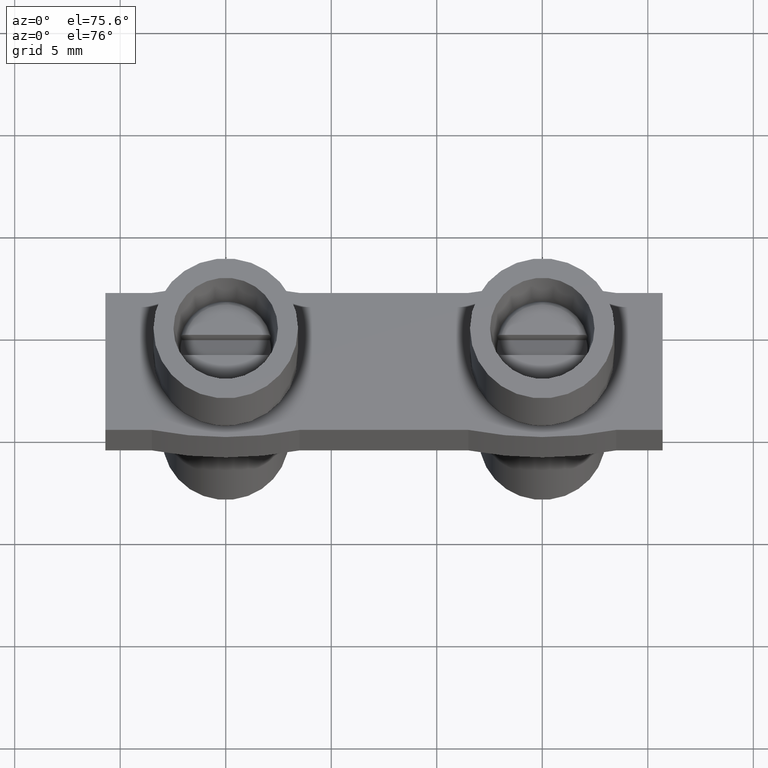
[diagram: clean part render]
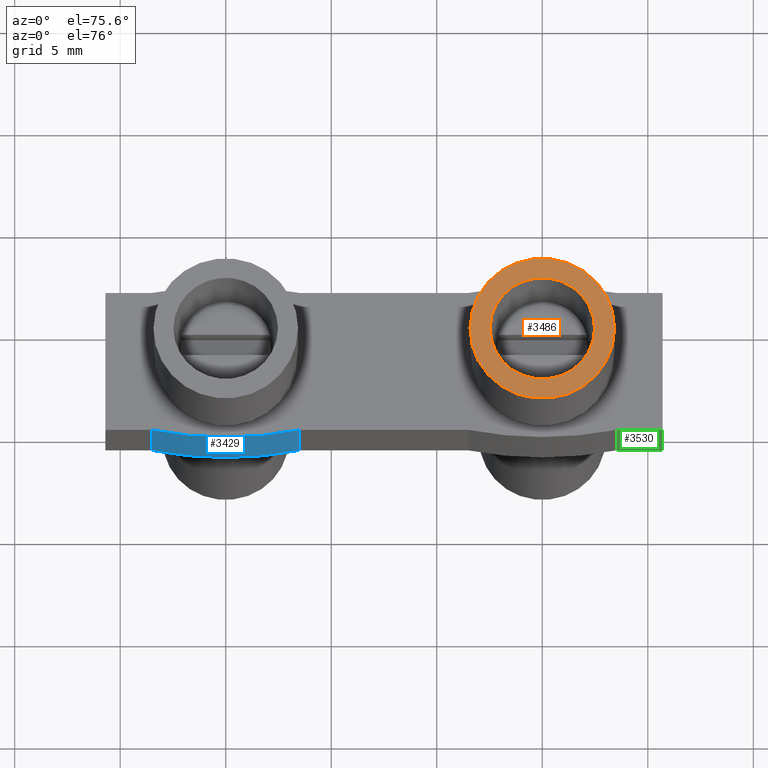
[diagram: same view with three faces highlighted in distinct colors, each labeled with its STEP entity id]
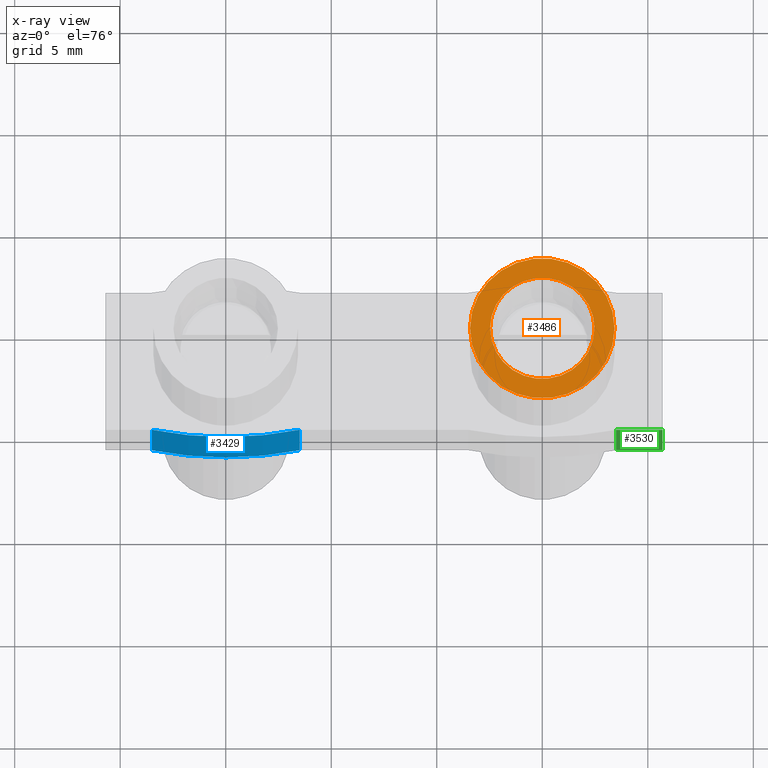
[diagram: x-ray of the same camera — body ghosted, the three highlighted faces saturated]
A machine part, auxiliary view with three faces highlighted in distinct colors.
The next image is the same camera in x-ray (body ghosted, the three faces saturated) — at least one of them is partly hidden behind the body in this view.
Their STEP definitions:

[orange] entity #3486 — the highlighted planar face has unit normal (0, 0, 1).
#308 = FACE_BOUND ( 'NONE', #2023, .T. ) ;
#312 = FACE_OUTER_BOUND ( 'NONE', #2005, .T. ) ;
#316 = PLANE ( 'NONE',  #3151 ) ;
#327 = CARTESIAN_POINT ( 'NONE',  ( 15.00000000000165000, 1.868518637687989600E-015, 5.400000000000000400 ) ) ;
#334 = DIRECTION ( 'NONE',  ( -1.000000000000000000, -2.491358183583711900E-016, 0.0000000000000000000 ) ) ;
#350 = DIRECTION ( 'NONE',  ( 0.0000000000000000000, 0.0000000000000000000, 1.000000000000000000 ) ) ;
#962 = CARTESIAN_POINT ( 'NONE',  ( 15.00000000000165000, 1.868518637687989600E-015, 5.400000000008731100 ) ) ;
#964 = DIRECTION ( 'NONE',  ( -1.000000000000000000, -2.491358183583711900E-016, 0.0000000000000000000 ) ) ;
#967 = DIRECTION ( 'NONE',  ( 0.0000000000000000000, 0.0000000000000000000, 1.000000000000000000 ) ) ;
#1003 = DIRECTION ( 'NONE',  ( 1.000000000000000000, 2.491358183583711900E-016, 0.0000000000000000000 ) ) ;
#1010 = DIRECTION ( 'NONE',  ( -0.0000000000000000000, -0.0000000000000000000, 1.000000000000000000 ) ) ;
#1019 = CARTESIAN_POINT ( 'NONE',  ( 15.00000000000165000, 1.868518637687989600E-015, 5.400000000000000400 ) ) ;
#1237 = CARTESIAN_POINT ( 'NONE',  ( 15.00000000000165000, 1.868518637687989600E-015, 5.400000000000000400 ) ) ;
#1238 = DIRECTION ( 'NONE',  ( 1.000000000000000000, 2.491358183583711900E-016, 0.0000000000000000000 ) ) ;
#1254 = DIRECTION ( 'NONE',  ( -0.0000000000000000000, -0.0000000000000000000, 1.000000000000000000 ) ) ;
#1538 = CARTESIAN_POINT ( 'NONE',  ( 15.00000000000165000, 1.868518637687989600E-015, 5.400000000008731100 ) ) ;
#1543 = DIRECTION ( 'NONE',  ( -1.000000000000000000, -2.491358183583711900E-016, 0.0000000000000000000 ) ) ;
#1549 = DIRECTION ( 'NONE',  ( 0.0000000000000000000, 0.0000000000000000000, 1.000000000000000000 ) ) ;
#1849 = CARTESIAN_POINT ( 'NONE',  ( 17.47500000000565400, 2.182029705336495500E-015, 5.400000000008731100 ) ) ;
#2005 = EDGE_LOOP ( 'NONE', ( #2625, #2657 ) ) ;
#2023 = EDGE_LOOP ( 'NONE', ( #2633, #2672 ) ) ;
#2035 = CARTESIAN_POINT ( 'NONE',  ( 18.42500000000164900, 2.721808815565410300E-015, 5.400000000000000400 ) ) ;
#2087 = CARTESIAN_POINT ( 'NONE',  ( 11.57500000000165300, 5.957869311026002800E-016, 5.400000000000000400 ) ) ;
#2158 = CARTESIAN_POINT ( 'NONE',  ( 12.52499999999764800, 1.251907487250023900E-015, 5.400000000008731100 ) ) ;
#2175 = VERTEX_POINT ( 'NONE', #2087 ) ;
#2183 = VERTEX_POINT ( 'NONE', #2035 ) ;
#2317 = VERTEX_POINT ( 'NONE', #2158 ) ;
#2337 = VERTEX_POINT ( 'NONE', #1849 ) ;
#2625 = ORIENTED_EDGE ( 'NONE', *, *, #3328, .T. ) ;
#2633 = ORIENTED_EDGE ( 'NONE', *, *, #3385, .F. ) ;
#2657 = ORIENTED_EDGE ( 'NONE', *, *, #3238, .T. ) ;
#2672 = ORIENTED_EDGE ( 'NONE', *, *, #3225, .F. ) ;
#2769 = AXIS2_PLACEMENT_3D ( 'NONE', #962, #967, #964 ) ;
#2812 = CIRCLE ( 'NONE', #2769, 2.475000000004001800 ) ;
#2830 = CIRCLE ( 'NONE', #2849, 3.424999999999997600 ) ;
#2849 = AXIS2_PLACEMENT_3D ( 'NONE', #1019, #1010, #1003 ) ;
#2945 = AXIS2_PLACEMENT_3D ( 'NONE', #1237, #1254, #1238 ) ;
#2968 = CIRCLE ( 'NONE', #2945, 3.424999999999997600 ) ;
#3005 = CIRCLE ( 'NONE', #3026, 2.475000000004001800 ) ;
#3026 = AXIS2_PLACEMENT_3D ( 'NONE', #1538, #1549, #1543 ) ;
#3151 = AXIS2_PLACEMENT_3D ( 'NONE', #327, #350, #334 ) ;
#3225 = EDGE_CURVE ( 'NONE', #2337, #2317, #2812, .T. ) ;
#3238 = EDGE_CURVE ( 'NONE', #2175, #2183, #2830, .T. ) ;
#3328 = EDGE_CURVE ( 'NONE', #2183, #2175, #2968, .T. ) ;
#3385 = EDGE_CURVE ( 'NONE', #2317, #2337, #3005, .T. ) ;
#3486 = ADVANCED_FACE ( 'NONE', ( #312, #308 ), #316, .T. ) ;

[blue] entity #3429 — the highlighted cylindrical surface (partial cylindrical patch) has radius 17.675 mm, axis along (0, 0, 1).
#936 = CARTESIAN_POINT ( 'NONE',  ( 1.734289795103002200E-015, 13.97500000000478900, -4.800000000000001600 ) ) ;
#951 = DIRECTION ( 'NONE',  ( -0.0000000000000000000, -0.0000000000000000000, 1.000000000000000000 ) ) ;
#961 = DIRECTION ( 'NONE',  ( -1.000000000000000000, 0.0000000000000000000, 0.0000000000000000000 ) ) ;
#1023 = CARTESIAN_POINT ( 'NONE',  ( 3.500000000001513000, -3.349999999999964100, -11.80160695840604700 ) ) ;
#1051 = LINE ( 'NONE', #1023, #2821 ) ;
#1064 = DIRECTION ( 'NONE',  ( 0.0000000000000000000, 0.0000000000000000000, 1.000000000000000000 ) ) ;
#1071 = CARTESIAN_POINT ( 'NONE',  ( 1.734289795103002200E-015, 13.97500000000478900, -0.9000000000000014700 ) ) ;
#1073 = DIRECTION ( 'NONE',  ( 0.0000000000000000000, 0.0000000000000000000, 1.000000000000000000 ) ) ;
#1098 = DIRECTION ( 'NONE',  ( 1.000000000000000000, 0.0000000000000000000, 0.0000000000000000000 ) ) ;
#1158 = DIRECTION ( 'NONE',  ( -0.0000000000000000000, -0.0000000000000000000, -1.000000000000000000 ) ) ;
#1168 = CARTESIAN_POINT ( 'NONE',  ( -3.500000000002025900, -3.349999999999916600, -0.9000000000000014700 ) ) ;
#1170 = LINE ( 'NONE', #1168, #2903 ) ;
#1708 = CYLINDRICAL_SURFACE ( 'NONE', #3092, 17.67500000000478600 ) ;
#1723 = CARTESIAN_POINT ( 'NONE',  ( 1.734289795103002200E-015, 13.97500000000478900, -11.80874453807542700 ) ) ;
#1762 = FACE_OUTER_BOUND ( 'NONE', #1912, .T. ) ;
#1779 = DIRECTION ( 'NONE',  ( 0.0000000000000000000, 0.0000000000000000000, 1.000000000000000000 ) ) ;
#1789 = DIRECTION ( 'NONE',  ( 1.000000000000000000, 0.0000000000000000000, 0.0000000000000000000 ) ) ;
#1834 = CARTESIAN_POINT ( 'NONE',  ( -3.500000000002025000, -3.349999999999915700, -0.9000000000000014700 ) ) ;
#1912 = EDGE_LOOP ( 'NONE', ( #2435, #2461, #2462, #2455 ) ) ;
#2071 = CARTESIAN_POINT ( 'NONE',  ( -3.500000000000049300, -3.350000000000086700, -4.800000000000001600 ) ) ;
#2148 = CARTESIAN_POINT ( 'NONE',  ( 3.500000000001739900, -3.349999999999943200, -4.800000000000001600 ) ) ;
#2172 = CARTESIAN_POINT ( 'NONE',  ( 3.500000000001742600, -3.349999999999943200, -0.9000000000000014700 ) ) ;
#2210 = VERTEX_POINT ( 'NONE', #2071 ) ;
#2254 = VERTEX_POINT ( 'NONE', #2148 ) ;
#2324 = VERTEX_POINT ( 'NONE', #2172 ) ;
#2339 = VERTEX_POINT ( 'NONE', #1834 ) ;
#2435 = ORIENTED_EDGE ( 'NONE', *, *, #3297, .T. ) ;
#2455 = ORIENTED_EDGE ( 'NONE', *, *, #3268, .F. ) ;
#2461 = ORIENTED_EDGE ( 'NONE', *, *, #3231, .T. ) ;
#2462 = ORIENTED_EDGE ( 'NONE', *, *, #3253, .T. ) ;
#2788 = CIRCLE ( 'NONE', #2790, 17.67500000000478600 ) ;
#2790 = AXIS2_PLACEMENT_3D ( 'NONE', #936, #951, #961 ) ;
#2821 = VECTOR ( 'NONE', #1064, 1000.000000000000000 ) ;
#2823 = AXIS2_PLACEMENT_3D ( 'NONE', #1071, #1073, #1098 ) ;
#2838 = CIRCLE ( 'NONE', #2823, 17.67500000000478600 ) ;
#2903 = VECTOR ( 'NONE', #1158, 1000.000000000000000 ) ;
#3092 = AXIS2_PLACEMENT_3D ( 'NONE', #1723, #1779, #1789 ) ;
#3231 = EDGE_CURVE ( 'NONE', #2210, #2254, #2788, .T. ) ;
#3253 = EDGE_CURVE ( 'NONE', #2254, #2324, #1051, .T. ) ;
#3268 = EDGE_CURVE ( 'NONE', #2339, #2324, #2838, .T. ) ;
#3297 = EDGE_CURVE ( 'NONE', #2339, #2210, #1170, .T. ) ;
#3429 = ADVANCED_FACE ( 'NONE', ( #1762 ), #1708, .T. ) ;

[green] entity #3530 — the highlighted planar face has unit normal (-0, 1, 0).
#681 = DIRECTION ( 'NONE',  ( -1.245679091791855700E-016, 1.000000000000000000, 0.0000000000000000000 ) ) ;
#687 = DIRECTION ( 'NONE',  ( 1.000000000000000000, 1.245679091791855700E-016, 0.0000000000000000000 ) ) ;
#698 = CARTESIAN_POINT ( 'NONE',  ( -1.149999999998357200, -3.349999999999916200, -0.9000000000000014700 ) ) ;
#702 = FACE_OUTER_BOUND ( 'NONE', #1973, .T. ) ;
#722 = PLANE ( 'NONE',  #3179 ) ;
#940 = LINE ( 'NONE', #949, #2858 ) ;
#941 = DIRECTION ( 'NONE',  ( -1.000000000000000000, -1.245679091791855700E-016, -0.0000000000000000000 ) ) ;
#949 = CARTESIAN_POINT ( 'NONE',  ( -1.149999999998357200, -3.349999999999916200, -0.9000000000000014700 ) ) ;
#1163 = LINE ( 'NONE', #1167, #2891 ) ;
#1167 = CARTESIAN_POINT ( 'NONE',  ( 77.85000000000167100, -3.349999999999899300, -4.800000000000001600 ) ) ;
#1179 = DIRECTION ( 'NONE',  ( 1.000000000000000000, 2.491358183583711900E-016, 0.0000000000000000000 ) ) ;
#1234 = CARTESIAN_POINT ( 'NONE',  ( 20.70000000000164800, -3.349999999999913500, -0.9000000000000014700 ) ) ;
#1255 = LINE ( 'NONE', #1234, #2911 ) ;
#1260 = DIRECTION ( 'NONE',  ( -0.0000000000000000000, 0.0000000000000000000, -1.000000000000000000 ) ) ;
#1507 = LINE ( 'NONE', #1523, #3002 ) ;
#1523 = CARTESIAN_POINT ( 'NONE',  ( 18.50000000000367700, -3.349999999999913900, -0.9000000000000014700 ) ) ;
#1526 = DIRECTION ( 'NONE',  ( -0.0000000000000000000, -0.0000000000000000000, -1.000000000000000000 ) ) ;
#1847 = CARTESIAN_POINT ( 'NONE',  ( 18.50000000000367700, -3.349999999999913000, -0.9000000000000014700 ) ) ;
#1973 = EDGE_LOOP ( 'NONE', ( #2595, #2597, #2588, #2601 ) ) ;
#2032 = CARTESIAN_POINT ( 'NONE',  ( 18.50000000000170200, -3.350000000000084500, -4.800000000000001600 ) ) ;
#2091 = CARTESIAN_POINT ( 'NONE',  ( 20.70000000000164800, -3.349999999999913500, -4.800000000000001600 ) ) ;
#2106 = CARTESIAN_POINT ( 'NONE',  ( 20.70000000000164800, -3.349999999999913500, -0.9000000000000014700 ) ) ;
#2181 = VERTEX_POINT ( 'NONE', #2091 ) ;
#2218 = VERTEX_POINT ( 'NONE', #2032 ) ;
#2281 = VERTEX_POINT ( 'NONE', #2106 ) ;
#2329 = VERTEX_POINT ( 'NONE', #1847 ) ;
#2588 = ORIENTED_EDGE ( 'NONE', *, *, #3396, .T. ) ;
#2595 = ORIENTED_EDGE ( 'NONE', *, *, #3320, .F. ) ;
#2597 = ORIENTED_EDGE ( 'NONE', *, *, #3234, .T. ) ;
#2601 = ORIENTED_EDGE ( 'NONE', *, *, #3300, .T. ) ;
#2858 = VECTOR ( 'NONE', #941, 1000.000000000000000 ) ;
#2891 = VECTOR ( 'NONE', #1179, 1000.000000000000000 ) ;
#2911 = VECTOR ( 'NONE', #1260, 1000.000000000000000 ) ;
#3002 = VECTOR ( 'NONE', #1526, 1000.000000000000000 ) ;
#3179 = AXIS2_PLACEMENT_3D ( 'NONE', #698, #681, #687 ) ;
#3234 = EDGE_CURVE ( 'NONE', #2281, #2329, #940, .T. ) ;
#3300 = EDGE_CURVE ( 'NONE', #2218, #2181, #1163, .T. ) ;
#3320 = EDGE_CURVE ( 'NONE', #2281, #2181, #1255, .T. ) ;
#3396 = EDGE_CURVE ( 'NONE', #2329, #2218, #1507, .T. ) ;
#3530 = ADVANCED_FACE ( 'NONE', ( #702 ), #722, .F. ) ;